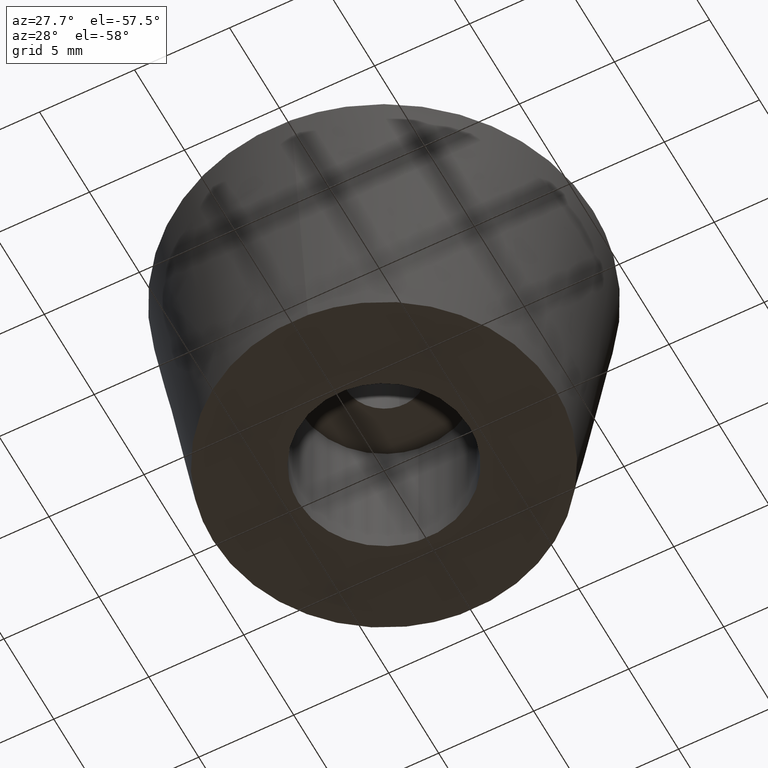
[diagram: clean part render]
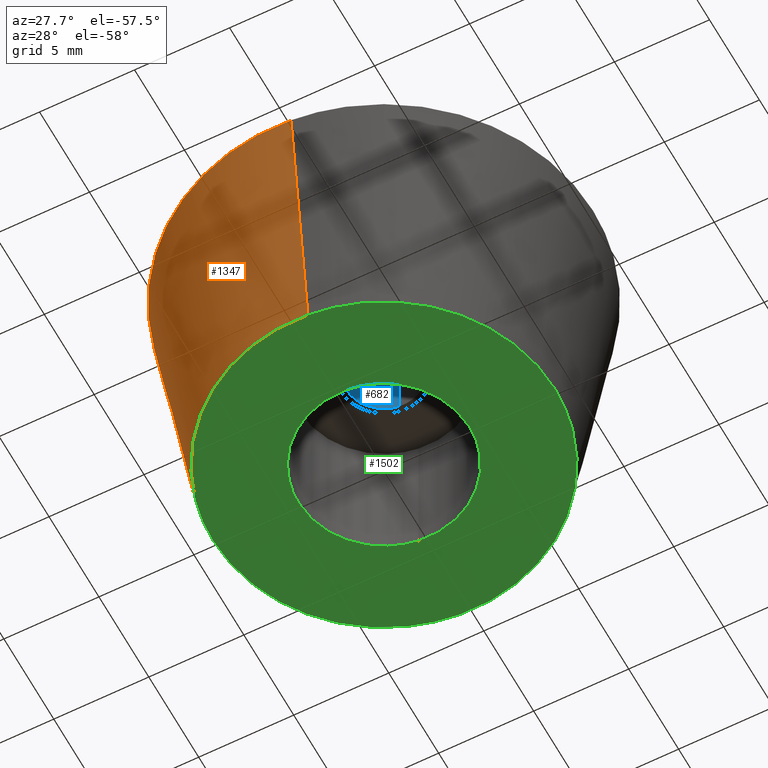
[diagram: same view with three faces highlighted in distinct colors, each labeled with its STEP entity id]
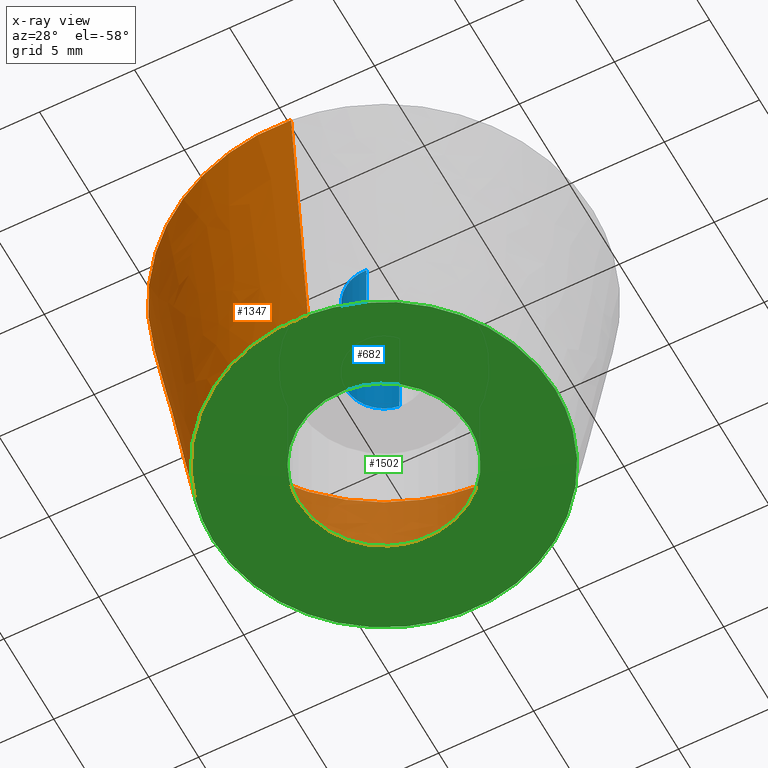
[diagram: x-ray of the same camera — body ghosted, the three highlighted faces saturated]
A machine part, auxiliary view with three faces highlighted in distinct colors.
The next image is the same camera in x-ray (body ghosted, the three faces saturated) — at least one of them is partly hidden behind the body in this view.
Their STEP definitions:

[orange] entity #1347 — the highlighted face is a freeform B-spline surface patch.
#1249=CARTESIAN_POINT('',(-0.702208906764217,8.922410136911482,-0.350000000000000));
#1250=CARTESIAN_POINT('',(-9.624619043675699,8.220201230147266,-0.350000000000000));
#1251=CARTESIAN_POINT('',(-8.922410136911482,-0.702208906764217,-0.350000000000000));
#1252=CARTESIAN_POINT('',(-8.220201230147266,-9.624619043675699,-0.350000000000000));
#1253=CARTESIAN_POINT('',(0.702208906764217,-8.922410136911482,-0.350000000000000));
#1254=CARTESIAN_POINT('',(-0.867071081662353,11.017182684418231,14.358750000000001));
#1255=CARTESIAN_POINT('',(-11.884253766080581,10.150111602755874,14.358749999999999));
#1256=CARTESIAN_POINT('',(-11.017182684418231,-0.867071081662353,14.358750000000001));
#1257=CARTESIAN_POINT('',(-10.150111602755874,-11.884253766080581,14.358749999999999));
#1258=CARTESIAN_POINT('',(0.867071081662353,-11.017182684418231,14.358750000000001));
#1266=(BOUNDED_SURFACE()B_SPLINE_SURFACE(2,1,((#1249,#1254),(#1250,#1255),(#1251,#1256),(#1252,#1257),(#1253,#1258)),.UNSPECIFIED.,.F.,.F.,.U.)B_SPLINE_SURFACE_WITH_KNOTS((3,2,3),(2,2),(0.0,18.310310524702661,36.620621049405322),(0.0,14.858081239682340),.UNSPECIFIED.)GEOMETRIC_REPRESENTATION_ITEM()RATIONAL_B_SPLINE_SURFACE(((1.0,1.0),(0.707106781186548,0.707106781186548),(1.0,1.0),(0.707106781186548,0.707106781186548),(1.0,1.0)))REPRESENTATION_ITEM('')SURFACE());
#1267=CARTESIAN_POINT('',(-9.0,0.0,0.0));
#1268=VERTEX_POINT('',#1267);
#1269=CARTESIAN_POINT('',(-0.706130450822384,8.972256042262355,-0.000000504974533));
#1270=VERTEX_POINT('',#1269);
#1271=CARTESIAN_POINT('',(-9.0,0.0,0.0));
#1272=CARTESIAN_POINT('',(-9.0,8.319515731800587,0.0));
#1273=CARTESIAN_POINT('',(-0.706130450822384,8.972256042262355,-0.000000504974533));
#1281=(BOUNDED_CURVE()B_SPLINE_CURVE(2,(#1271,#1272,#1273),.UNSPECIFIED.,.F.,.U.)B_SPLINE_CURVE_WITH_KNOTS((3,3),(0.0,0.236331327478090),.UNSPECIFIED.)CURVE()GEOMETRIC_REPRESENTATION_ITEM()RATIONAL_B_SPLINE_CURVE((1.0,0.723120627153944,0.969723412195964))REPRESENTATION_ITEM(''));
#1282=EDGE_CURVE('',#1268,#1270,#1281,.T.);
#1283=ORIENTED_EDGE('',*,*,#1282,.F.);
#1284=CARTESIAN_POINT('',(0.706130450822384,-8.972256042262355,-0.000000504974533));
#1285=VERTEX_POINT('',#1284);
#1286=CARTESIAN_POINT('',(0.706130450822384,-8.972256042262355,-0.000000504974533));
#1287=CARTESIAN_POINT('',(0.353610257274673,-9.0,0.0));
#1288=CARTESIAN_POINT('',(0.0,-9.0,0.0));
#1289=CARTESIAN_POINT('',(-9.0,-9.0,0.0));
#1290=CARTESIAN_POINT('',(-9.0,0.0,0.0));
#1298=(BOUNDED_CURVE()B_SPLINE_CURVE(2,(#1286,#1287,#1288,#1289,#1290),.UNSPECIFIED.,.F.,.U.)B_SPLINE_CURVE_WITH_KNOTS((3,2,3),(0.736331327478090,0.750000000000000,1.0),.UNSPECIFIED.)CURVE()GEOMETRIC_REPRESENTATION_ITEM()RATIONAL_B_SPLINE_CURVE((0.969723412195964,0.983986154032603,1.0,0.707106781186547,1.0))REPRESENTATION_ITEM(''));
#1299=EDGE_CURVE('',#1285,#1268,#1298,.T.);
#1300=ORIENTED_EDGE('',*,*,#1299,.F.);
#1301=CARTESIAN_POINT('',(0.863043719665199,-10.966090825320739,13.999997598133641));
#1302=VERTEX_POINT('',#1301);
#1303=CARTESIAN_POINT('',(0.706130450822384,-8.972256042262355,-0.000000504974533));
#1304=CARTESIAN_POINT('',(0.863043719665199,-10.966090825320739,13.999997598133641));
#1305=QUASI_UNIFORM_CURVE('',1,(#1303,#1304),.UNSPECIFIED.,.F.,.U.);
#1306=EDGE_CURVE('',#1285,#1302,#1305,.T.);
#1307=ORIENTED_EDGE('',*,*,#1306,.T.);
#1308=CARTESIAN_POINT('',(-11.0,0.0,14.0));
#1309=VERTEX_POINT('',#1308);
#1310=CARTESIAN_POINT('',(0.863043719665199,-10.966090825320734,13.999997598133639));
#1311=CARTESIAN_POINT('',(0.432187982809188,-10.999999664143953,13.999997641750518));
#1312=CARTESIAN_POINT('',(-0.000000025903385,-10.999999670863840,13.999997688934970));
#1313=CARTESIAN_POINT('',(-11.000000012442824,-10.999999841897772,13.999998889868149));
#1314=CARTESIAN_POINT('',(-11.0,0.0,14.0));
#1322=(BOUNDED_CURVE()B_SPLINE_CURVE(2,(#1310,#1311,#1312,#1313,#1314),.UNSPECIFIED.,.F.,.U.)B_SPLINE_CURVE_WITH_KNOTS((3,2,3),(0.736331399216205,0.750000000000000,1.0),.UNSPECIFIED.)CURVE()GEOMETRIC_REPRESENTATION_ITEM()RATIONAL_B_SPLINE_CURVE((0.969723561908021,0.983986238079033,1.0,0.707106781186548,1.0))REPRESENTATION_ITEM(''));
#1323=EDGE_CURVE('',#1302,#1309,#1322,.T.);
#1324=ORIENTED_EDGE('',*,*,#1323,.T.);
#1325=CARTESIAN_POINT('',(-0.863043719665198,10.966090825320739,13.999997598133641));
#1326=VERTEX_POINT('',#1325);
#1327=CARTESIAN_POINT('',(-11.0,0.0,14.0));
#1328=CARTESIAN_POINT('',(-10.999999986539438,10.168301102910700,13.999998799066827));
#1329=CARTESIAN_POINT('',(-0.863043719665198,10.966090825320736,13.999997598133641));
#1337=(BOUNDED_CURVE()B_SPLINE_CURVE(2,(#1327,#1328,#1329),.UNSPECIFIED.,.F.,.U.)B_SPLINE_CURVE_WITH_KNOTS((3,3),(0.0,0.236331399216205),.UNSPECIFIED.)CURVE()GEOMETRIC_REPRESENTATION_ITEM()RATIONAL_B_SPLINE_CURVE((1.0,0.723120543107515,0.969723561908021))REPRESENTATION_ITEM(''));
#1338=EDGE_CURVE('',#1309,#1326,#1337,.T.);
#1339=ORIENTED_EDGE('',*,*,#1338,.T.);
#1340=CARTESIAN_POINT('',(-0.706130450822384,8.972256042262355,-0.000000504974533));
#1341=CARTESIAN_POINT('',(-0.863043719665198,10.966090825320739,13.999997598133641));
#1342=QUASI_UNIFORM_CURVE('',1,(#1340,#1341),.UNSPECIFIED.,.F.,.U.);
#1343=EDGE_CURVE('',#1270,#1326,#1342,.T.);
#1344=ORIENTED_EDGE('',*,*,#1343,.F.);
#1345=EDGE_LOOP('',(#1283,#1300,#1307,#1324,#1339,#1344));
#1346=FACE_OUTER_BOUND('',#1345,.T.);
#1347=ADVANCED_FACE('',(#1346),#1266,.T.);

[blue] entity #682 — the highlighted face is a freeform B-spline surface patch.
#519=CARTESIAN_POINT('',(-0.236068469325456,1.986019052725913,7.999999999999839));
#520=VERTEX_POINT('',#519);
#538=CARTESIAN_POINT('',(0.122097079083763,-1.996269596842874,7.999999999999840));
#539=VERTEX_POINT('',#538);
#553=CARTESIAN_POINT('',(0.122097079083763,-1.996269596842874,14.0));
#554=VERTEX_POINT('',#553);
#555=CARTESIAN_POINT('',(0.122097079083763,-1.996269596842874,14.0));
#556=CARTESIAN_POINT('',(0.122097079083763,-1.996269596842874,7.999999999999840));
#557=QUASI_UNIFORM_CURVE('',1,(#555,#556),.UNSPECIFIED.,.F.,.U.);
#558=EDGE_CURVE('',#554,#539,#557,.T.);
#575=CARTESIAN_POINT('',(-0.236068469325456,1.986019052725913,14.0));
#576=VERTEX_POINT('',#575);
#592=CARTESIAN_POINT('',(-0.236068469325456,1.986019052725913,14.0));
#593=CARTESIAN_POINT('',(-0.236068469325456,1.986019052725913,7.999999999999839));
#594=QUASI_UNIFORM_CURVE('',1,(#592,#593),.UNSPECIFIED.,.F.,.U.);
#595=EDGE_CURVE('',#576,#520,#594,.T.);
#600=CARTESIAN_POINT('',(0.122097079069714,-1.996269596843733,14.150000000000009));
#601=CARTESIAN_POINT('',(-1.874172517774020,-2.118366675913447,14.150000000000004));
#602=CARTESIAN_POINT('',(-1.996269596843733,-0.122097079069714,14.150000000000009));
#603=CARTESIAN_POINT('',(-2.111572393465055,1.763086981679002,14.150000000000009));
#604=CARTESIAN_POINT('',(-0.236068469313517,1.986019052727332,14.150000000000007));
#605=CARTESIAN_POINT('',(0.122097079069714,-1.996269596843733,7.846249999999833));
#606=CARTESIAN_POINT('',(-1.874172517774020,-2.118366675913447,7.846249999999833));
#607=CARTESIAN_POINT('',(-1.996269596843733,-0.122097079069714,7.846249999999833));
#608=CARTESIAN_POINT('',(-2.111572393465055,1.763086981679002,7.846249999999833));
#609=CARTESIAN_POINT('',(-0.236068469313517,1.986019052727332,7.846249999999835));
#617=(BOUNDED_SURFACE()B_SPLINE_SURFACE(2,1,((#600,#605),(#601,#606),(#602,#607),(#603,#608),(#604,#609)),.UNSPECIFIED.,.F.,.F.,.U.)B_SPLINE_SURFACE_WITH_KNOTS((3,2,3),(2,2),(0.0,3.313708498984759,6.494868658010128),(0.0,6.303750000000174),.UNSPECIFIED.)GEOMETRIC_REPRESENTATION_ITEM()RATIONAL_B_SPLINE_SURFACE(((1.0,1.0),(0.707106781186548,0.707106781186548),(1.0,1.0),(0.718822509939086,0.718822509939086),(0.977505800795127,0.977505800795127)))REPRESENTATION_ITEM('')SURFACE());
#618=CARTESIAN_POINT('',(-2.0,0.0,7.999999999999839));
#619=VERTEX_POINT('',#618);
#620=CARTESIAN_POINT('',(-2.0,0.0,7.999999999999839));
#621=CARTESIAN_POINT('',(-2.000000000000000,1.776349051881226,7.999999999999838));
#622=CARTESIAN_POINT('',(-0.236068469325457,1.986019052725913,7.999999999999839));
#630=(BOUNDED_CURVE()B_SPLINE_CURVE(2,(#620,#621,#622),.UNSPECIFIED.,.F.,.U.)B_SPLINE_CURVE_WITH_KNOTS((3,3),(0.0,0.229562473513612),.UNSPECIFIED.)CURVE()GEOMETRIC_REPRESENTATION_ITEM()RATIONAL_B_SPLINE_CURVE((1.0,0.731050832855281,0.956026754183903))REPRESENTATION_ITEM(''));
#631=EDGE_CURVE('',#619,#520,#630,.T.);
#632=ORIENTED_EDGE('',*,*,#631,.T.);
#633=ORIENTED_EDGE('',*,*,#595,.F.);
#634=CARTESIAN_POINT('',(-2.0,0.0,14.0));
#635=VERTEX_POINT('',#634);
#636=CARTESIAN_POINT('',(-2.0,0.0,14.0));
#637=CARTESIAN_POINT('',(-2.000000000000000,1.776349051881226,13.999999999999996));
#638=CARTESIAN_POINT('',(-0.236068469325457,1.986019052725913,14.0));
#646=(BOUNDED_CURVE()B_SPLINE_CURVE(2,(#636,#637,#638),.UNSPECIFIED.,.F.,.U.)B_SPLINE_CURVE_WITH_KNOTS((3,3),(0.0,0.229562473513612),.UNSPECIFIED.)CURVE()GEOMETRIC_REPRESENTATION_ITEM()RATIONAL_B_SPLINE_CURVE((1.0,0.731050832855281,0.956026754183903))REPRESENTATION_ITEM(''));
#647=EDGE_CURVE('',#635,#576,#646,.T.);
#648=ORIENTED_EDGE('',*,*,#647,.F.);
#649=CARTESIAN_POINT('',(0.122097079083763,-1.996269596842875,13.999999999999996));
#650=CARTESIAN_POINT('',(0.061105526611267,-2.0,13.999999999999998));
#651=CARTESIAN_POINT('',(0.0,-2.0,14.0));
#652=CARTESIAN_POINT('',(-2.000000000000000,-2.000000000000000,13.999999999999998));
#653=CARTESIAN_POINT('',(-2.0,0.0,14.0));
#661=(BOUNDED_CURVE()B_SPLINE_CURVE(2,(#649,#650,#651,#652,#653),.UNSPECIFIED.,.F.,.U.)B_SPLINE_CURVE_WITH_KNOTS((3,2,3),(0.739332962239540,0.750000000000000,1.0),.UNSPECIFIED.)CURVE()GEOMETRIC_REPRESENTATION_ITEM()RATIONAL_B_SPLINE_CURVE((0.976072041667997,0.987502787900536,1.0,0.707106781186548,1.0))REPRESENTATION_ITEM(''));
#662=EDGE_CURVE('',#554,#635,#661,.T.);
#663=ORIENTED_EDGE('',*,*,#662,.F.);
#664=ORIENTED_EDGE('',*,*,#558,.T.);
#665=CARTESIAN_POINT('',(0.122097079083763,-1.996269596842875,7.999999999999840));
#666=CARTESIAN_POINT('',(0.061105526611267,-2.0,7.999999999999839));
#667=CARTESIAN_POINT('',(0.0,-2.0,7.999999999999839));
#668=CARTESIAN_POINT('',(-2.000000000000000,-2.000000000000000,7.999999999999839));
#669=CARTESIAN_POINT('',(-2.0,0.0,7.999999999999839));
#677=(BOUNDED_CURVE()B_SPLINE_CURVE(2,(#665,#666,#667,#668,#669),.UNSPECIFIED.,.F.,.U.)B_SPLINE_CURVE_WITH_KNOTS((3,2,3),(0.739332962239540,0.750000000000000,1.0),.UNSPECIFIED.)CURVE()GEOMETRIC_REPRESENTATION_ITEM()RATIONAL_B_SPLINE_CURVE((0.976072041667997,0.987502787900536,1.0,0.707106781186548,1.0))REPRESENTATION_ITEM(''));
#678=EDGE_CURVE('',#539,#619,#677,.T.);
#679=ORIENTED_EDGE('',*,*,#678,.T.);
#680=EDGE_LOOP('',(#632,#633,#648,#663,#664,#679));
#681=FACE_OUTER_BOUND('',#680,.T.);
#682=ADVANCED_FACE('',(#681),#617,.F.);

[green] entity #1502 — the highlighted face is a freeform B-spline surface patch.
#1100=CARTESIAN_POINT('',(-0.531147438978127,4.468543655154615,6.956599E-016));
#1101=VERTEX_POINT('',#1100);
#1107=CARTESIAN_POINT('',(4.500000000000000,0.0,0.0));
#1108=VERTEX_POINT('',#1107);
#1109=CARTESIAN_POINT('',(-0.531147438978127,4.468543655154615,6.956599E-016));
#1110=CARTESIAN_POINT('',(-0.266505194968768,4.500000000000000,0.0));
#1111=CARTESIAN_POINT('',(0.0,4.500000000000000,0.0));
#1112=CARTESIAN_POINT('',(4.500000000000000,4.500000000000000,0.0));
#1113=CARTESIAN_POINT('',(4.500000000000000,0.0,0.0));
#1121=(BOUNDED_CURVE()B_SPLINE_CURVE(2,(#1109,#1110,#1111,#1112,#1113),.UNSPECIFIED.,.F.,.U.)B_SPLINE_CURVE_WITH_KNOTS((3,2,3),(0.229562723774127,0.250000000000000,0.500000000000000),.UNSPECIFIED.)CURVE()GEOMETRIC_REPRESENTATION_ITEM()RATIONAL_B_SPLINE_CURVE((0.956027244705340,0.976056241529698,1.0,0.707106781186547,1.0))REPRESENTATION_ITEM(''));
#1122=EDGE_CURVE('',#1101,#1108,#1121,.T.);
#1124=CARTESIAN_POINT('',(0.274714620861846,-4.491606825744010,7.077672E-016));
#1125=VERTEX_POINT('',#1124);
#1126=CARTESIAN_POINT('',(4.500000000000000,0.0,0.0));
#1127=CARTESIAN_POINT('',(4.500000000000000,-4.233180895784416,0.0));
#1128=CARTESIAN_POINT('',(0.274714620861846,-4.491606825744010,7.077672E-016));
#1136=(BOUNDED_CURVE()B_SPLINE_CURVE(2,(#1126,#1127,#1128),.UNSPECIFIED.,.F.,.U.)B_SPLINE_CURVE_WITH_KNOTS((3,3),(0.500000000000000,0.739333108491078),.UNSPECIFIED.)CURVE()GEOMETRIC_REPRESENTATION_ITEM()RATIONAL_B_SPLINE_CURVE((1.0,0.719603821941675,0.976072355113085))REPRESENTATION_ITEM(''));
#1137=EDGE_CURVE('',#1108,#1125,#1136,.T.);
#1215=CARTESIAN_POINT('',(-4.500000000000000,0.0,0.0));
#1216=VERTEX_POINT('',#1215);
#1217=CARTESIAN_POINT('',(0.274714620861846,-4.491606825744010,7.077672E-016));
#1218=CARTESIAN_POINT('',(0.137485525983976,-4.500000000000001,0.0));
#1219=CARTESIAN_POINT('',(0.0,-4.500000000000000,0.0));
#1220=CARTESIAN_POINT('',(-4.500000000000000,-4.500000000000000,0.0));
#1221=CARTESIAN_POINT('',(-4.500000000000000,0.0,0.0));
#1229=(BOUNDED_CURVE()B_SPLINE_CURVE(2,(#1217,#1218,#1219,#1220,#1221),.UNSPECIFIED.,.F.,.U.)B_SPLINE_CURVE_WITH_KNOTS((3,2,3),(0.739333108491078,0.750000000000000,1.0),.UNSPECIFIED.)CURVE()GEOMETRIC_REPRESENTATION_ITEM()RATIONAL_B_SPLINE_CURVE((0.976072355113085,0.987502959244872,1.0,0.707106781186547,1.0))REPRESENTATION_ITEM(''));
#1230=EDGE_CURVE('',#1125,#1216,#1229,.T.);
#1232=CARTESIAN_POINT('',(-4.500000000000000,0.0,0.0));
#1233=CARTESIAN_POINT('',(-4.500000000000000,3.996791326850819,0.0));
#1234=CARTESIAN_POINT('',(-0.531147438978127,4.468543655154615,6.956599E-016));
#1242=(BOUNDED_CURVE()B_SPLINE_CURVE(2,(#1232,#1233,#1234),.UNSPECIFIED.,.F.,.U.)B_SPLINE_CURVE_WITH_KNOTS((3,3),(0.0,0.229562723774127),.UNSPECIFIED.)CURVE()GEOMETRIC_REPRESENTATION_ITEM()RATIONAL_B_SPLINE_CURVE((1.0,0.731050539656850,0.956027244705340))REPRESENTATION_ITEM(''));
#1243=EDGE_CURVE('',#1216,#1101,#1242,.T.);
#1267=CARTESIAN_POINT('',(-9.0,0.0,0.0));
#1268=VERTEX_POINT('',#1267);
#1269=CARTESIAN_POINT('',(-0.706130450822384,8.972256042262355,-0.000000504974533));
#1270=VERTEX_POINT('',#1269);
#1271=CARTESIAN_POINT('',(-9.0,0.0,0.0));
#1272=CARTESIAN_POINT('',(-9.0,8.319515731800587,0.0));
#1273=CARTESIAN_POINT('',(-0.706130450822384,8.972256042262355,-0.000000504974533));
#1281=(BOUNDED_CURVE()B_SPLINE_CURVE(2,(#1271,#1272,#1273),.UNSPECIFIED.,.F.,.U.)B_SPLINE_CURVE_WITH_KNOTS((3,3),(0.0,0.236331327478090),.UNSPECIFIED.)CURVE()GEOMETRIC_REPRESENTATION_ITEM()RATIONAL_B_SPLINE_CURVE((1.0,0.723120627153944,0.969723412195964))REPRESENTATION_ITEM(''));
#1282=EDGE_CURVE('',#1268,#1270,#1281,.T.);
#1284=CARTESIAN_POINT('',(0.706130450822384,-8.972256042262355,-0.000000504974533));
#1285=VERTEX_POINT('',#1284);
#1286=CARTESIAN_POINT('',(0.706130450822384,-8.972256042262355,-0.000000504974533));
#1287=CARTESIAN_POINT('',(0.353610257274673,-9.0,0.0));
#1288=CARTESIAN_POINT('',(0.0,-9.0,0.0));
#1289=CARTESIAN_POINT('',(-9.0,-9.0,0.0));
#1290=CARTESIAN_POINT('',(-9.0,0.0,0.0));
#1298=(BOUNDED_CURVE()B_SPLINE_CURVE(2,(#1286,#1287,#1288,#1289,#1290),.UNSPECIFIED.,.F.,.U.)B_SPLINE_CURVE_WITH_KNOTS((3,2,3),(0.736331327478090,0.750000000000000,1.0),.UNSPECIFIED.)CURVE()GEOMETRIC_REPRESENTATION_ITEM()RATIONAL_B_SPLINE_CURVE((0.969723412195964,0.983986154032603,1.0,0.707106781186547,1.0))REPRESENTATION_ITEM(''));
#1299=EDGE_CURVE('',#1285,#1268,#1298,.T.);
#1366=CARTESIAN_POINT('',(9.0,0.0,0.0));
#1367=VERTEX_POINT('',#1366);
#1368=CARTESIAN_POINT('',(-0.706130450822384,8.972256042262355,-0.000000504974533));
#1369=CARTESIAN_POINT('',(-0.353610257274673,9.0,0.0));
#1370=CARTESIAN_POINT('',(0.0,9.0,0.0));
#1371=CARTESIAN_POINT('',(9.0,9.0,0.0));
#1372=CARTESIAN_POINT('',(9.0,0.0,0.0));
#1380=(BOUNDED_CURVE()B_SPLINE_CURVE(2,(#1368,#1369,#1370,#1371,#1372),.UNSPECIFIED.,.F.,.U.)B_SPLINE_CURVE_WITH_KNOTS((3,2,3),(0.236331327478090,0.250000000000000,0.500000000000000),.UNSPECIFIED.)CURVE()GEOMETRIC_REPRESENTATION_ITEM()RATIONAL_B_SPLINE_CURVE((0.969723412195964,0.983986154032603,1.0,0.707106781186547,1.0))REPRESENTATION_ITEM(''));
#1381=EDGE_CURVE('',#1270,#1367,#1380,.T.);
#1415=CARTESIAN_POINT('',(9.0,0.0,0.0));
#1416=CARTESIAN_POINT('',(9.0,-8.319515731800587,0.0));
#1417=CARTESIAN_POINT('',(0.706130450822384,-8.972256042262355,-0.000000504974533));
#1425=(BOUNDED_CURVE()B_SPLINE_CURVE(2,(#1415,#1416,#1417),.UNSPECIFIED.,.F.,.U.)B_SPLINE_CURVE_WITH_KNOTS((3,3),(0.500000000000000,0.736331327478090),.UNSPECIFIED.)CURVE()GEOMETRIC_REPRESENTATION_ITEM()RATIONAL_B_SPLINE_CURVE((1.0,0.723120627153944,0.969723412195964))REPRESENTATION_ITEM(''));
#1426=EDGE_CURVE('',#1367,#1285,#1425,.T.);
#1485=CARTESIAN_POINT('',(-9.899099965112507,-9.896352774541672,0.0));
#1486=CARTESIAN_POINT('',(9.899100447910129,-9.896352774541672,0.0));
#1487=CARTESIAN_POINT('',(-9.899099965112507,9.896353257339291,0.0));
#1488=CARTESIAN_POINT('',(9.899100447910129,9.896353257339291,0.0));
#1489=B_SPLINE_SURFACE_WITH_KNOTS('',1,1,((#1485,#1487),(#1486,#1488)),.UNSPECIFIED.,.F.,.F.,.U.,(2,2),(2,2),(0.0,19.798200413022631),(0.0,19.792706031880961),.UNSPECIFIED.);
#1490=ORIENTED_EDGE('',*,*,#1282,.T.);
#1491=ORIENTED_EDGE('',*,*,#1381,.T.);
#1492=ORIENTED_EDGE('',*,*,#1426,.T.);
#1493=ORIENTED_EDGE('',*,*,#1299,.T.);
#1494=EDGE_LOOP('',(#1490,#1491,#1492,#1493));
#1495=FACE_OUTER_BOUND('',#1494,.T.);
#1496=ORIENTED_EDGE('',*,*,#1137,.F.);
#1497=ORIENTED_EDGE('',*,*,#1122,.F.);
#1498=ORIENTED_EDGE('',*,*,#1243,.F.);
#1499=ORIENTED_EDGE('',*,*,#1230,.F.);
#1500=EDGE_LOOP('',(#1496,#1497,#1498,#1499));
#1501=FACE_BOUND('',#1500,.T.);
#1502=ADVANCED_FACE('',(#1495,#1501),#1489,.F.);